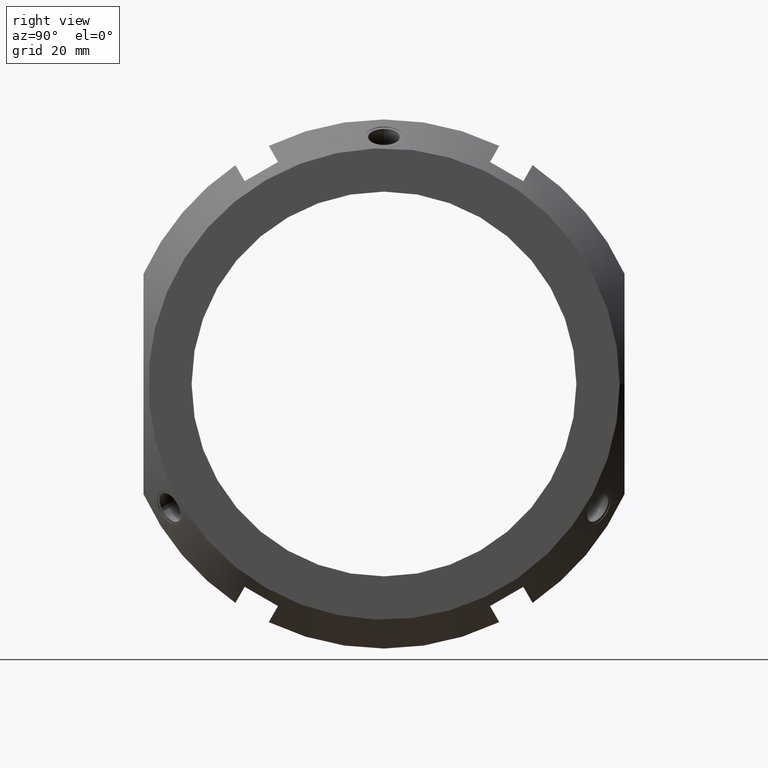
[diagram: clean part render]
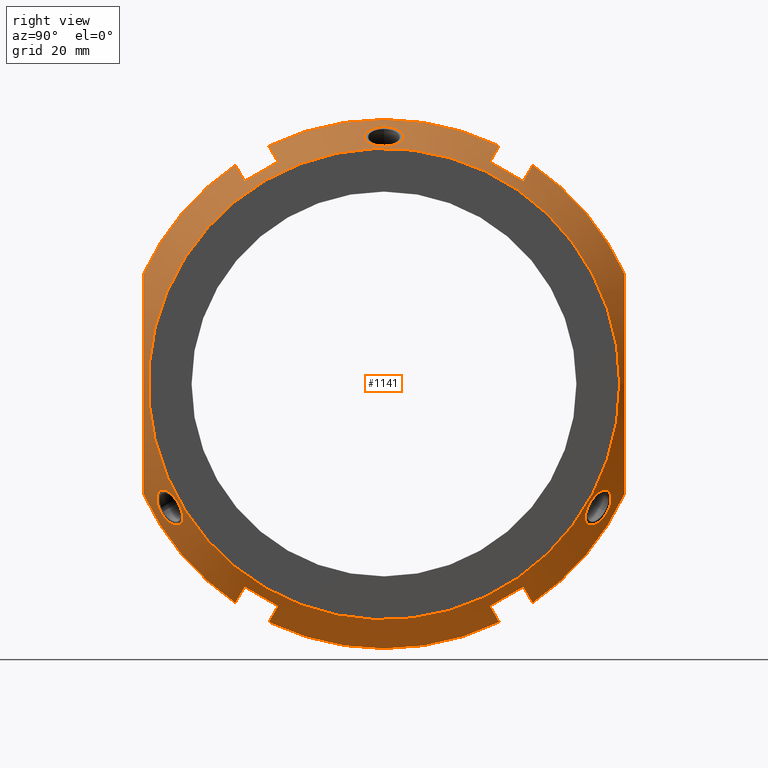
[diagram: same view with one face highlighted and labeled with its STEP entity id]
A machine part, right view. The second image highlights one B-rep face of the part: STEP entity #1141.
In plain terms, the highlighted conical surface has half-angle 30 deg.
Its self-contained STEP definition (entity closure, byte-faithful):
#90=CARTESIAN_POINT('',(28.264620690760729,28.964101615137743,-42.167295593006372));
#91=VERTEX_POINT('',#90);
#98=CARTESIAN_POINT('',(28.264620690760722,22.035898384862232,-46.167295593006372));
#99=VERTEX_POINT('',#98);
#100=CARTESIAN_POINT('',(28.264620690760722,22.035898384862232,-46.167295593006372));
#101=CARTESIAN_POINT('',(28.80634552915641,25.500000000000341,-44.167295593006166));
#102=CARTESIAN_POINT('',(28.264620690760729,28.964101615137743,-42.167295593006372));
#110=(BOUNDED_CURVE()B_SPLINE_CURVE(2,(#100,#101,#102),.UNSPECIFIED.,.F.,.U.)B_SPLINE_CURVE_WITH_KNOTS((3,3),(1.734643537009384,2.610468659470702),.UNSPECIFIED.)CURVE()GEOMETRIC_REPRESENTATION_ITEM()RATIONAL_B_SPLINE_CURVE((1.037622404359556,1.040808968189459,1.037622404359556))REPRESENTATION_ITEM(''));
#111=EDGE_CURVE('',#99,#91,#110,.T.);
#143=CARTESIAN_POINT('',(21.6076951545867,23.963074688667184,-49.505262866339351));
#144=VERTEX_POINT('',#143);
#145=CARTESIAN_POINT('',(21.6076951545867,23.963074688667191,-49.505262866339343));
#146=CARTESIAN_POINT('',(25.057353417111695,22.964600030328505,-47.775854028026771));
#147=CARTESIAN_POINT('',(28.264620690760722,22.035898384862236,-46.167295593006372));
#155=(BOUNDED_CURVE()B_SPLINE_CURVE(2,(#145,#146,#147),.UNSPECIFIED.,.F.,.U.)B_SPLINE_CURVE_WITH_KNOTS((3,3),(0.0,0.769224880885498),.UNSPECIFIED.)CURVE()GEOMETRIC_REPRESENTATION_ITEM()RATIONAL_B_SPLINE_CURVE((1.0,1.000659794382448,1.0))REPRESENTATION_ITEM(''));
#156=EDGE_CURVE('',#144,#99,#155,.T.);
#187=CARTESIAN_POINT('',(21.6076951545867,30.891277918942698,-45.505262866339358));
#188=VERTEX_POINT('',#187);
#195=CARTESIAN_POINT('',(28.264620690760729,28.964101615137743,-42.167295593006379));
#196=CARTESIAN_POINT('',(25.057353405152291,29.892803264066281,-43.77585403402361));
#197=CARTESIAN_POINT('',(21.6076951545867,30.891277918942691,-45.505262866339358));
#205=(BOUNDED_CURVE()B_SPLINE_CURVE(2,(#195,#196,#197),.UNSPECIFIED.,.F.,.U.)B_SPLINE_CURVE_WITH_KNOTS((3,3),(0.0,0.769224880885499),.UNSPECIFIED.)CURVE()GEOMETRIC_REPRESENTATION_ITEM()RATIONAL_B_SPLINE_CURVE((1.0,1.000659793944811,1.0))REPRESENTATION_ITEM(''));
#206=EDGE_CURVE('',#91,#188,#205,.T.);
#234=CARTESIAN_POINT('',(28.264620690760736,-28.964101615137817,-42.167295593006308));
#235=VERTEX_POINT('',#234);
#242=CARTESIAN_POINT('',(21.607695154586732,-30.89127791894277,-45.505262866339287));
#243=VERTEX_POINT('',#242);
#244=CARTESIAN_POINT('',(21.6076951545867,-30.891277918942777,-45.505262866339308));
#245=CARTESIAN_POINT('',(25.057353420734067,-29.892803259555407,-43.775854026210354));
#246=CARTESIAN_POINT('',(28.264620690760736,-28.964101615137817,-42.167295593006308));
#254=(BOUNDED_CURVE()B_SPLINE_CURVE(2,(#244,#245,#246),.UNSPECIFIED.,.F.,.U.)B_SPLINE_CURVE_WITH_KNOTS((3,3),(0.0,0.769224880885501),.UNSPECIFIED.)CURVE()GEOMETRIC_REPRESENTATION_ITEM()RATIONAL_B_SPLINE_CURVE((1.0,1.000659794403236,1.0))REPRESENTATION_ITEM(''));
#255=EDGE_CURVE('',#243,#235,#254,.T.);
#288=CARTESIAN_POINT('',(21.607695154586732,-23.963074688667263,-49.505262866339301));
#289=VERTEX_POINT('',#288);
#296=CARTESIAN_POINT('',(28.264620690760744,-22.03589838486231,-46.167295593006315));
#297=VERTEX_POINT('',#296);
#298=CARTESIAN_POINT('',(28.264620690760744,-22.03589838486231,-46.16729559300633));
#299=CARTESIAN_POINT('',(25.057353405166801,-22.964600033786652,-47.775854034016291));
#300=CARTESIAN_POINT('',(21.6076951545867,-23.96307468866727,-49.505262866339308));
#308=(BOUNDED_CURVE()B_SPLINE_CURVE(2,(#298,#299,#300),.UNSPECIFIED.,.F.,.U.)B_SPLINE_CURVE_WITH_KNOTS((3,3),(0.0,0.769224880885501),.UNSPECIFIED.)CURVE()GEOMETRIC_REPRESENTATION_ITEM()RATIONAL_B_SPLINE_CURVE((1.0,1.000659793995793,1.0))REPRESENTATION_ITEM(''));
#309=EDGE_CURVE('',#297,#289,#308,.T.);
#339=CARTESIAN_POINT('',(28.264620690760736,-28.964101615137817,-42.167295593006308));
#340=CARTESIAN_POINT('',(28.806345529156427,-25.499999999999719,-44.167295593006514));
#341=CARTESIAN_POINT('',(28.264620690760744,-22.03589838486231,-46.167295593006315));
#349=(BOUNDED_CURVE()B_SPLINE_CURVE(2,(#339,#340,#341),.UNSPECIFIED.,.F.,.U.)B_SPLINE_CURVE_WITH_KNOTS((3,3),(1.73464353700939,2.610468659470711),.UNSPECIFIED.)CURVE()GEOMETRIC_REPRESENTATION_ITEM()RATIONAL_B_SPLINE_CURVE((1.037622404359558,1.040808968189461,1.037622404359558))REPRESENTATION_ITEM(''));
#350=EDGE_CURVE('',#235,#297,#349,.T.);
#557=CARTESIAN_POINT('',(21.607695154586708,0.0,0.0));
#558=DIRECTION('',(1.0,0.0,0.0));
#559=DIRECTION('',(0.0,1.0,0.0));
#560=AXIS2_PLACEMENT_3D('',#557,#558,#559);
#561=CIRCLE('',#560,55.0);
#562=EDGE_CURVE('',#289,#144,#561,.T.);
#575=CARTESIAN_POINT('',(21.607695154586708,-50.000000000000028,-22.912878474779141));
#576=VERTEX_POINT('',#575);
#577=CARTESIAN_POINT('',(21.607695154586708,0.0,0.0));
#578=DIRECTION('',(1.0,0.0,0.0));
#579=DIRECTION('',(0.0,1.0,0.0));
#580=AXIS2_PLACEMENT_3D('',#577,#578,#579);
#581=CIRCLE('',#580,55.0);
#582=EDGE_CURVE('',#576,#243,#581,.T.);
#600=CARTESIAN_POINT('',(28.264620690760722,22.035898384862232,46.167295593006372));
#601=VERTEX_POINT('',#600);
#608=CARTESIAN_POINT('',(28.264620690760729,28.964101615137743,42.167295593006372));
#609=VERTEX_POINT('',#608);
#610=CARTESIAN_POINT('',(28.264620690760729,28.964101615137743,42.167295593006372));
#611=CARTESIAN_POINT('',(28.806345529156406,25.499999999999634,44.167295593006571));
#612=CARTESIAN_POINT('',(28.264620690760722,22.035898384862232,46.167295593006372));
#620=(BOUNDED_CURVE()B_SPLINE_CURVE(2,(#610,#611,#612),.UNSPECIFIED.,.F.,.U.)B_SPLINE_CURVE_WITH_KNOTS((3,3),(1.73464353700939,2.610468659470709),.UNSPECIFIED.)CURVE()GEOMETRIC_REPRESENTATION_ITEM()RATIONAL_B_SPLINE_CURVE((1.037622404359556,1.04080896818946,1.037622404359556))REPRESENTATION_ITEM(''));
#621=EDGE_CURVE('',#609,#601,#620,.T.);
#639=CARTESIAN_POINT('',(21.6076951545867,30.891277918942698,45.505262866339358));
#640=VERTEX_POINT('',#639);
#641=CARTESIAN_POINT('',(21.607695154586708,30.891277918942691,45.505262866339358));
#642=CARTESIAN_POINT('',(25.057353403914835,29.892803264424401,43.775854034643878));
#643=CARTESIAN_POINT('',(28.264620690760729,28.964101615137743,42.167295593006372));
#651=(BOUNDED_CURVE()B_SPLINE_CURVE(2,(#641,#642,#643),.UNSPECIFIED.,.F.,.U.)B_SPLINE_CURVE_WITH_KNOTS((3,3),(0.0,0.725655823753423),.UNSPECIFIED.)CURVE()GEOMETRIC_REPRESENTATION_ITEM()RATIONAL_B_SPLINE_CURVE((1.0,1.001737559443914,1.002155269651014))REPRESENTATION_ITEM(''));
#652=EDGE_CURVE('',#640,#609,#651,.T.);
#669=CARTESIAN_POINT('',(21.6076951545867,23.963074688667184,49.505262866339351));
#670=VERTEX_POINT('',#669);
#677=CARTESIAN_POINT('',(28.264620690760722,22.035898384862232,46.167295593006372));
#678=CARTESIAN_POINT('',(25.057353403793741,22.964600034183981,47.775854034704651));
#679=CARTESIAN_POINT('',(21.607695154586708,23.963074688667191,49.505262866339351));
#687=(BOUNDED_CURVE()B_SPLINE_CURVE(2,(#677,#678,#679),.UNSPECIFIED.,.F.,.U.)B_SPLINE_CURVE_WITH_KNOTS((3,3),(1.184971684905641,1.910627508695336),.UNSPECIFIED.)CURVE()GEOMETRIC_REPRESENTATION_ITEM()RATIONAL_B_SPLINE_CURVE((1.0021552696376,1.001737559433153,1.0))REPRESENTATION_ITEM(''));
#688=EDGE_CURVE('',#601,#670,#687,.T.);
#700=CARTESIAN_POINT('',(28.264620690760736,-28.964101615137817,42.167295593006308));
#701=VERTEX_POINT('',#700);
#708=CARTESIAN_POINT('',(28.264620690760744,-22.03589838486231,46.167295593006315));
#709=VERTEX_POINT('',#708);
#710=CARTESIAN_POINT('',(28.264620690760744,-22.03589838486231,46.167295593006315));
#711=CARTESIAN_POINT('',(28.806345529156413,-25.500000000000416,44.167295593006116));
#712=CARTESIAN_POINT('',(28.264620690760736,-28.964101615137817,42.167295593006308));
#720=(BOUNDED_CURVE()B_SPLINE_CURVE(2,(#710,#711,#712),.UNSPECIFIED.,.F.,.U.)B_SPLINE_CURVE_WITH_KNOTS((3,3),(1.734643537009391,2.610468659470709),.UNSPECIFIED.)CURVE()GEOMETRIC_REPRESENTATION_ITEM()RATIONAL_B_SPLINE_CURVE((1.037622404359557,1.04080896818946,1.037622404359557))REPRESENTATION_ITEM(''));
#721=EDGE_CURVE('',#709,#701,#720,.T.);
#739=CARTESIAN_POINT('',(21.607695154586732,-23.963074688667263,49.505262866339301));
#740=VERTEX_POINT('',#739);
#741=CARTESIAN_POINT('',(21.607695154586708,-23.963074688667266,49.505262866339308));
#742=CARTESIAN_POINT('',(25.057353403115261,-22.964600034380641,47.775854035045093));
#743=CARTESIAN_POINT('',(28.264620690760744,-22.03589838486231,46.167295593006315));
#751=(BOUNDED_CURVE()B_SPLINE_CURVE(2,(#741,#742,#743),.UNSPECIFIED.,.F.,.U.)B_SPLINE_CURVE_WITH_KNOTS((3,3),(0.0,0.725655824021857),.UNSPECIFIED.)CURVE()GEOMETRIC_REPRESENTATION_ITEM()RATIONAL_B_SPLINE_CURVE((1.0,1.001737559394436,1.002155269589153))REPRESENTATION_ITEM(''));
#752=EDGE_CURVE('',#740,#709,#751,.T.);
#769=CARTESIAN_POINT('',(21.607695154586732,-30.89127791894277,45.505262866339287));
#770=VERTEX_POINT('',#769);
#777=CARTESIAN_POINT('',(28.264620690760736,-28.964101615137817,42.167295593006308));
#778=CARTESIAN_POINT('',(25.05735340503454,-29.892803264100067,43.775854034081917));
#779=CARTESIAN_POINT('',(21.607695154586708,-30.891277918942777,45.505262866339294));
#787=(BOUNDED_CURVE()B_SPLINE_CURVE(2,(#777,#778,#779),.UNSPECIFIED.,.F.,.U.)B_SPLINE_CURVE_WITH_KNOTS((3,3),(1.184971685333193,1.910627508695336),.UNSPECIFIED.)CURVE()GEOMETRIC_REPRESENTATION_ITEM()RATIONAL_B_SPLINE_CURVE((1.002155269723438,1.001737559501728,1.0))REPRESENTATION_ITEM(''));
#788=EDGE_CURVE('',#701,#770,#787,.T.);
#800=CARTESIAN_POINT('',(21.607695154586708,50.000000000000043,22.912878474779106));
#801=VERTEX_POINT('',#800);
#802=CARTESIAN_POINT('',(21.607695154586708,0.0,0.0));
#803=DIRECTION('',(1.0,0.0,0.0));
#804=DIRECTION('',(0.0,1.0,0.0));
#805=AXIS2_PLACEMENT_3D('',#802,#803,#804);
#806=CIRCLE('',#805,55.0);
#807=EDGE_CURVE('',#801,#640,#806,.T.);
#826=CARTESIAN_POINT('',(21.607695154586708,-50.000000000000043,22.912878474779106));
#827=VERTEX_POINT('',#826);
#834=CARTESIAN_POINT('',(21.607695154586708,0.0,0.0));
#835=DIRECTION('',(1.0,0.0,0.0));
#836=DIRECTION('',(0.0,1.0,0.0));
#837=AXIS2_PLACEMENT_3D('',#834,#835,#836);
#838=CIRCLE('',#837,55.0);
#839=EDGE_CURVE('',#770,#827,#838,.T.);
#851=CARTESIAN_POINT('',(21.607695154586708,50.000000000000028,-22.912878474779141));
#852=VERTEX_POINT('',#851);
#853=CARTESIAN_POINT('',(21.607695154586708,50.000000000000028,-22.912878474779138));
#854=CARTESIAN_POINT('',(38.140907408653185,50.000000000000036,-9.779716E-015));
#855=CARTESIAN_POINT('',(21.607695154586711,50.000000000000043,22.912878474779102));
#863=(BOUNDED_CURVE()B_SPLINE_CURVE(2,(#853,#854,#855),.UNSPECIFIED.,.F.,.U.)B_SPLINE_CURVE_WITH_KNOTS((3,3),(0.0,4.898979485566338),.UNSPECIFIED.)CURVE()GEOMETRIC_REPRESENTATION_ITEM()RATIONAL_B_SPLINE_CURVE((1.0,1.099999999999999,1.0))REPRESENTATION_ITEM(''));
#864=EDGE_CURVE('',#852,#801,#863,.T.);
#882=CARTESIAN_POINT('',(21.607695154586708,-50.000000000000043,22.912878474779102));
#883=CARTESIAN_POINT('',(38.140907408653185,-50.000000000000036,-1.294303E-014));
#884=CARTESIAN_POINT('',(21.607695154586708,-50.000000000000028,-22.912878474779138));
#892=(BOUNDED_CURVE()B_SPLINE_CURVE(2,(#882,#883,#884),.UNSPECIFIED.,.F.,.U.)B_SPLINE_CURVE_WITH_KNOTS((3,3),(0.0,4.898979485566338),.UNSPECIFIED.)CURVE()GEOMETRIC_REPRESENTATION_ITEM()RATIONAL_B_SPLINE_CURVE((1.0,1.099999999999999,1.0))REPRESENTATION_ITEM(''));
#893=EDGE_CURVE('',#827,#576,#892,.T.);
#899=CARTESIAN_POINT('',(26.803847577293347,0.0,0.0));
#900=DIRECTION('',(-1.0,0.0,0.0));
#901=DIRECTION('',(0.0,1.0,0.0));
#902=AXIS2_PLACEMENT_3D('',#899,#900,#901);
#903=CONICAL_SURFACE('',#902,52.0,29.99999999999994);
#904=ORIENTED_EDGE('',*,*,#206,.T.);
#905=CARTESIAN_POINT('',(21.607695154586708,0.0,0.0));
#906=DIRECTION('',(1.0,0.0,0.0));
#907=DIRECTION('',(0.0,1.0,0.0));
#908=AXIS2_PLACEMENT_3D('',#905,#906,#907);
#909=CIRCLE('',#908,55.0);
#910=EDGE_CURVE('',#188,#852,#909,.T.);
#911=ORIENTED_EDGE('',*,*,#910,.T.);
#912=ORIENTED_EDGE('',*,*,#864,.T.);
#913=ORIENTED_EDGE('',*,*,#807,.T.);
#914=ORIENTED_EDGE('',*,*,#652,.T.);
#915=ORIENTED_EDGE('',*,*,#621,.T.);
#916=ORIENTED_EDGE('',*,*,#688,.T.);
#917=CARTESIAN_POINT('',(21.607695154586708,0.0,0.0));
#918=DIRECTION('',(1.0,0.0,0.0));
#919=DIRECTION('',(0.0,1.0,0.0));
#920=AXIS2_PLACEMENT_3D('',#917,#918,#919);
#921=CIRCLE('',#920,55.0);
#922=EDGE_CURVE('',#670,#740,#921,.T.);
#923=ORIENTED_EDGE('',*,*,#922,.T.);
#924=ORIENTED_EDGE('',*,*,#752,.T.);
#925=ORIENTED_EDGE('',*,*,#721,.T.);
#926=ORIENTED_EDGE('',*,*,#788,.T.);
#927=ORIENTED_EDGE('',*,*,#839,.T.);
#928=ORIENTED_EDGE('',*,*,#893,.T.);
#929=ORIENTED_EDGE('',*,*,#582,.T.);
#930=ORIENTED_EDGE('',*,*,#255,.T.);
#931=ORIENTED_EDGE('',*,*,#350,.T.);
#932=ORIENTED_EDGE('',*,*,#309,.T.);
#933=ORIENTED_EDGE('',*,*,#562,.T.);
#934=ORIENTED_EDGE('',*,*,#156,.T.);
#935=ORIENTED_EDGE('',*,*,#111,.T.);
#936=EDGE_LOOP('',(#904,#911,#912,#913,#914,#915,#916,#923,#924,#925,#926,#927,#928,#929,#930,#931,#932,#933,#934,#935));
#937=FACE_OUTER_BOUND('',#936,.T.);
#938=CARTESIAN_POINT('',(31.999999999999989,49.0,0.0));
#939=VERTEX_POINT('',#938);
#940=CARTESIAN_POINT('',(31.999999999999989,0.0,0.0));
#941=DIRECTION('',(1.0,0.0,0.0));
#942=DIRECTION('',(0.0,1.0,0.0));
#943=AXIS2_PLACEMENT_3D('',#940,#941,#942);
#944=CIRCLE('',#943,49.0);
#945=EDGE_CURVE('',#939,#939,#944,.T.);
#946=ORIENTED_EDGE('',*,*,#945,.F.);
#947=EDGE_LOOP('',(#946));
#948=FACE_BOUND('',#947,.T.);
#949=CARTESIAN_POINT('',(27.209554512072263,-4.017940230543362,51.609597765435645));
#950=VERTEX_POINT('',#949);
#951=CARTESIAN_POINT('',(27.209554512072263,4.017940230543362,51.609597765435645));
#952=VERTEX_POINT('',#951);
#953=CARTESIAN_POINT('',(27.209554512072263,-4.017940230543361,51.609597765435645));
#954=CARTESIAN_POINT('',(26.939134839373047,-3.978190034557428,51.769291721068697));
#955=CARTESIAN_POINT('',(26.66889265170866,-3.900177343793141,51.931818146804922));
#956=CARTESIAN_POINT('',(25.97057156994239,-3.589176763848575,52.358660435100944));
#957=CARTESIAN_POINT('',(25.568831340829469,-3.281179876666886,52.612134657530561));
#958=CARTESIAN_POINT('',(24.934915604030902,-2.557963145000911,53.018663391609053));
#959=CARTESIAN_POINT('',(24.661554663796359,-2.095793799865206,53.198051381512542));
#960=CARTESIAN_POINT('',(24.299291979020985,-1.077845305130758,53.437592144806878));
#961=CARTESIAN_POINT('',(24.210219507391781,-0.522053277396509,53.497431864335432));
#962=CARTESIAN_POINT('',(24.210219507391781,0.522053277396509,53.497431864335432));
#963=CARTESIAN_POINT('',(24.299291979020985,1.077845305130755,53.437592144806878));
#964=CARTESIAN_POINT('',(24.661554663796359,2.095793799865203,53.198051381512542));
#965=CARTESIAN_POINT('',(24.934915604030902,2.55796314500091,53.018663391609053));
#966=CARTESIAN_POINT('',(25.568831340829469,3.281179876666886,52.612134657530561));
#967=CARTESIAN_POINT('',(25.97057156994239,3.589176763848574,52.358660435100944));
#968=CARTESIAN_POINT('',(26.66889265170866,3.90017734379314,51.931818146804922));
#969=CARTESIAN_POINT('',(26.939134839373047,3.978190034557429,51.769291721068683));
#970=CARTESIAN_POINT('',(27.209554512072259,4.01794023054336,51.609597765435645));
#971=B_SPLINE_CURVE_WITH_KNOTS('',3,(#953,#954,#955,#956,#957,#958,#959,#960,#961,#962,#963,#964,#965,#966,#967,#968,#969,#970),.UNSPECIFIED.,.F.,.U.,(4,2,2,2,2,2,2,2,4),(1.254355175699413,1.345542130371437,1.502157929154016,1.658773912372968,1.815389895591921,1.972005878810873,2.128621862029826,2.285237660812404,2.376424615484428),.UNSPECIFIED.);
#972=EDGE_CURVE('',#950,#952,#971,.T.);
#973=ORIENTED_EDGE('',*,*,#972,.T.);
#974=CARTESIAN_POINT('',(28.225690273365089,3.995072917007132,51.022931510120017));
#975=VERTEX_POINT('',#974);
#976=CARTESIAN_POINT('',(27.209554512072263,4.017940230543362,51.609597765435645));
#977=CARTESIAN_POINT('',(27.719072302635546,4.006506573776131,51.315427531897022));
#978=CARTESIAN_POINT('',(28.225690273365089,3.995072917007132,51.022931510120017));
#979=B_SPLINE_CURVE_WITH_KNOTS('',2,(#976,#977,#978),.UNSPECIFIED.,.F.,.U.,(3,3),(0.350293273329336,0.467671084658452),.UNSPECIFIED.);
#980=EDGE_CURVE('',#952,#975,#979,.T.);
#981=ORIENTED_EDGE('',*,*,#980,.T.);
#982=CARTESIAN_POINT('',(28.225690273365089,-3.995072917007132,51.022931510120017));
#983=VERTEX_POINT('',#982);
#984=CARTESIAN_POINT('',(28.225690273365093,3.995072917007132,51.022931510120024));
#985=CARTESIAN_POINT('',(28.519132545825801,3.939014882750807,50.857383309246565));
#986=CARTESIAN_POINT('',(28.815747476672435,3.837746551656279,50.693540042722688));
#987=CARTESIAN_POINT('',(29.51940575629181,3.478337646094885,50.312469365478272));
#988=CARTESIAN_POINT('',(29.906228359597108,3.163766968435458,50.110267898197108));
#989=CARTESIAN_POINT('',(30.517660523239517,2.449957973334114,49.796809016055334));
#990=CARTESIAN_POINT('',(30.784128251821787,2.001827530269708,49.66402966929563));
#991=CARTESIAN_POINT('',(31.137911203943681,1.024544860498779,49.489506568321161));
#992=CARTESIAN_POINT('',(31.225025278045756,0.495378955746008,49.447431864335428));
#993=CARTESIAN_POINT('',(31.225025278045756,-0.495378955746008,49.447431864335428));
#994=CARTESIAN_POINT('',(31.137911203943677,-1.024544860498777,49.489506568321161));
#995=CARTESIAN_POINT('',(30.784128251821784,-2.001827530269706,49.66402966929563));
#996=CARTESIAN_POINT('',(30.517660523239517,-2.449957973334114,49.796809016055334));
#997=CARTESIAN_POINT('',(29.906228359597108,-3.163766968435458,50.110267898197108));
#998=CARTESIAN_POINT('',(29.519405756291818,-3.478337646094884,50.312469365478272));
#999=CARTESIAN_POINT('',(28.815747476672438,-3.837746551656278,50.693540042722688));
#1000=CARTESIAN_POINT('',(28.519132545825805,-3.939014882750805,50.857383309246558));
#1001=CARTESIAN_POINT('',(28.225690273365093,-3.995072917007132,51.022931510120024));
#1002=B_SPLINE_CURVE_WITH_KNOTS('',3,(#984,#985,#986,#987,#988,#989,#990,#991,#992,#993,#994,#995,#996,#997,#998,#999,#1000,#1001),.UNSPECIFIED.,.F.,.U.,(4,2,2,2,2,2,2,2,4),(0.049836218865129,0.148617896173412,0.297235792346824,0.445849479070627,0.594463165794429,0.743076852518232,0.891690539242034,1.040308435415446,1.13909011272373),.UNSPECIFIED.);
#1003=EDGE_CURVE('',#975,#983,#1002,.T.);
#1004=ORIENTED_EDGE('',*,*,#1003,.T.);
#1005=CARTESIAN_POINT('',(28.225690273365089,-3.995072917007132,51.022931510120017));
#1006=CARTESIAN_POINT('',(27.719072302633776,-4.006506573776089,51.315427531898052));
#1007=CARTESIAN_POINT('',(27.209554512072263,-4.017940230543362,51.609597765435645));
#1008=B_SPLINE_CURVE_WITH_KNOTS('',2,(#1005,#1006,#1007),.UNSPECIFIED.,.F.,.U.,(3,3),(0.342482687975418,0.459860499304534),.UNSPECIFIED.);
#1009=EDGE_CURVE('',#983,#950,#1008,.T.);
#1010=ORIENTED_EDGE('',*,*,#1009,.T.);
#1011=EDGE_LOOP('',(#973,#981,#1004,#1010));
#1012=FACE_BOUND('',#1011,.T.);
#1013=CARTESIAN_POINT('',(27.209554512071911,-42.686252628692394,-29.284437193255926));
#1014=VERTEX_POINT('',#1013);
#1015=CARTESIAN_POINT('',(27.209554512071911,-46.704192859235711,-22.325160572179904));
#1016=VERTEX_POINT('',#1015);
#1017=CARTESIAN_POINT('',(27.209554512071911,-42.686252628692401,-29.284437193255926));
#1018=CARTESIAN_POINT('',(26.939134839372816,-42.84442674909436,-29.329859491543175));
#1019=CARTESIAN_POINT('',(26.668892651708539,-43.024185107950288,-29.343561732391812));
#1020=CARTESIAN_POINT('',(25.970571569942379,-43.549341662996326,-29.287648473716146));
#1021=CARTESIAN_POINT('',(25.568831340829462,-43.92285522241572,-29.147652456345085));
#1022=CARTESIAN_POINT('',(24.934915604030895,-44.636527799329009,-28.724592761319641));
#1023=CARTESIAN_POINT('',(24.661554663796359,-45.02296702828712,-28.414036362533452));
#1024=CARTESIAN_POINT('',(24.299291979020978,-45.739389661909158,-27.652237487996455));
#1025=CARTESIAN_POINT('',(24.210219507391777,-46.069108393043336,-27.200827332522003));
#1026=CARTESIAN_POINT('',(24.210219507391777,-46.591161670439845,-26.296604531813404));
#1027=CARTESIAN_POINT('',(24.299291979020982,-46.817234967039916,-25.785354656810391));
#1028=CARTESIAN_POINT('',(24.661554663796359,-47.118760828152318,-24.784015018979066));
#1029=CARTESIAN_POINT('',(24.934915604030898,-47.194490944329921,-24.29407063028939));
#1030=CARTESIAN_POINT('',(25.568831340829465,-47.204035099082603,-23.464482201185454));
#1031=CARTESIAN_POINT('',(25.970571569942386,-47.138518426844897,-23.07101196138477));
#1032=CARTESIAN_POINT('',(26.66889265170855,-46.924362451743377,-22.588256414413156));
#1033=CARTESIAN_POINT('',(26.939134839372819,-46.822616783651711,-22.439432229525629));
#1034=CARTESIAN_POINT('',(27.209554512071911,-46.704192859235704,-22.325160572179904));
#1035=B_SPLINE_CURVE_WITH_KNOTS('',3,(#1017,#1018,#1019,#1020,#1021,#1022,#1023,#1024,#1025,#1026,#1027,#1028,#1029,#1030,#1031,#1032,#1033,#1034),.UNSPECIFIED.,.F.,.U.,(4,2,2,2,2,2,2,2,4),(1.254355175699451,1.345542130371437,1.502157929154015,1.658773912372968,1.81538989559192,1.972005878810873,2.128621862029826,2.285237660812404,2.376424615484389),.UNSPECIFIED.);
#1036=EDGE_CURVE('',#1014,#1016,#1035,.T.);
#1037=ORIENTED_EDGE('',*,*,#1036,.T.);
#1038=CARTESIAN_POINT('',(28.225690273365437,-46.184691321820821,-22.051631118960586));
#1039=VERTEX_POINT('',#1038);
#1040=CARTESIAN_POINT('',(27.209554512071911,-46.704192859235711,-22.325160572179904));
#1041=CARTESIAN_POINT('',(27.719072302682338,-46.443717135546322,-22.18797729261653));
#1042=CARTESIAN_POINT('',(28.225690273365437,-46.184691321820821,-22.051631118960586));
#1043=B_SPLINE_CURVE_WITH_KNOTS('',2,(#1040,#1041,#1042),.UNSPECIFIED.,.F.,.U.,(3,3),(0.350293273203268,0.467671084532465),.UNSPECIFIED.);
#1044=EDGE_CURVE('',#1016,#1039,#1043,.T.);
#1045=ORIENTED_EDGE('',*,*,#1044,.T.);
#1046=CARTESIAN_POINT('',(28.225690273365444,-42.189618404813757,-28.971300391159225));
#1047=VERTEX_POINT('',#1046);
#1048=CARTESIAN_POINT('',(28.225690273365434,-46.184691321820821,-22.051631118960586));
#1049=CARTESIAN_POINT('',(28.519132545826025,-46.013293357185489,-22.017404700276092));
#1050=CARTESIAN_POINT('',(28.815747476672541,-45.820766760589592,-22.023184014340885));
#1051=CARTESIAN_POINT('',(29.519405756291807,-45.311045420677971,-22.143905918281188));
#1052=CARTESIAN_POINT('',(29.906228359597108,-44.978648474500304,-22.315231382779363));
#1053=CARTESIAN_POINT('',(30.517660523239517,-44.350280621972971,-22.776678664916076));
#1054=CARTESIAN_POINT('',(30.78412825182177,-44.011225113048944,-23.098381339439165));
#1055=CARTESIAN_POINT('',(31.13791120394367,-43.371442339172361,-23.857471407651833));
#1056=CARTESIAN_POINT('',(31.225025278045745,-43.070421624287633,-24.294705171991456));
#1057=CARTESIAN_POINT('',(31.225025278045745,-42.575042668541613,-25.152726692343958));
#1058=CARTESIAN_POINT('',(31.137911203943681,-42.346897478673583,-25.632035160669304));
#1059=CARTESIAN_POINT('',(30.784128251821784,-42.009397582779243,-26.565648329856437));
#1060=CARTESIAN_POINT('',(30.517660523239513,-41.900322648638841,-27.020130351139244));
#1061=CARTESIAN_POINT('',(29.906228359597105,-41.814881506064829,-27.795036515417735));
#1062=CARTESIAN_POINT('',(29.519405756291807,-41.832707774583099,-28.168563447197066));
#1063=CARTESIAN_POINT('',(28.815747476672545,-41.983020208933375,-28.670356028381718));
#1064=CARTESIAN_POINT('',(28.519132545826036,-42.074278474434756,-28.83997860897032));
#1065=CARTESIAN_POINT('',(28.225690273365437,-42.189618404813757,-28.971300391159222));
#1066=B_SPLINE_CURVE_WITH_KNOTS('',3,(#1048,#1049,#1050,#1051,#1052,#1053,#1054,#1055,#1056,#1057,#1058,#1059,#1060,#1061,#1062,#1063,#1064,#1065),.UNSPECIFIED.,.F.,.U.,(4,2,2,2,2,2,2,2,4),(0.049836218865168,0.148617896173412,0.297235792346824,0.445849479070627,0.594463165794429,0.743076852518232,0.891690539242034,1.040308435415446,1.13909011272369),.UNSPECIFIED.);
#1067=EDGE_CURVE('',#1039,#1047,#1066,.T.);
#1068=ORIENTED_EDGE('',*,*,#1067,.T.);
#1069=CARTESIAN_POINT('',(28.225690273365444,-42.189618404813757,-28.971300391159225));
#1070=CARTESIAN_POINT('',(27.719072302669787,-42.437210561777476,-29.127450239257353));
#1071=CARTESIAN_POINT('',(27.209554512071911,-42.686252628692394,-29.284437193255926));
#1072=B_SPLINE_CURVE_WITH_KNOTS('',2,(#1069,#1070,#1071),.UNSPECIFIED.,.F.,.U.,(3,3),(0.34248268807235,0.459860499401547),.UNSPECIFIED.);
#1073=EDGE_CURVE('',#1047,#1014,#1072,.T.);
#1074=ORIENTED_EDGE('',*,*,#1073,.T.);
#1075=EDGE_LOOP('',(#1037,#1045,#1068,#1074));
#1076=FACE_BOUND('',#1075,.T.);
#1077=CARTESIAN_POINT('',(27.209554512071911,46.70419285923569,-22.325160572179943));
#1078=VERTEX_POINT('',#1077);
#1079=CARTESIAN_POINT('',(27.209554512071911,42.686252628692372,-29.284437193255961));
#1080=VERTEX_POINT('',#1079);
#1081=CARTESIAN_POINT('',(27.209554512071911,46.704192859235683,-22.325160572179943));
#1082=CARTESIAN_POINT('',(26.939134839372816,46.822616783651689,-22.439432229525671));
#1083=CARTESIAN_POINT('',(26.66889265170855,46.924362451743356,-22.588256414413195));
#1084=CARTESIAN_POINT('',(25.97057156994239,47.138518426844875,-23.071011961384809));
#1085=CARTESIAN_POINT('',(25.568831340829465,47.204035099082589,-23.46448220118549));
#1086=CARTESIAN_POINT('',(24.934915604030898,47.1944909443299,-24.294070630289426));
#1087=CARTESIAN_POINT('',(24.661554663796352,47.118760828152311,-24.784015018979112));
#1088=CARTESIAN_POINT('',(24.299291979020971,46.817234967039887,-25.785354656810441));
#1089=CARTESIAN_POINT('',(24.210219507391777,46.591161670439831,-26.296604531813443));
#1090=CARTESIAN_POINT('',(24.210219507391777,46.069108393043322,-27.200827332522049));
#1091=CARTESIAN_POINT('',(24.299291979020975,45.739389661909122,-27.652237487996491));
#1092=CARTESIAN_POINT('',(24.661554663796345,45.022967028287084,-28.414036362533487));
#1093=CARTESIAN_POINT('',(24.934915604030898,44.636527799328995,-28.724592761319677));
#1094=CARTESIAN_POINT('',(25.568831340829465,43.922855222415706,-29.147652456345121));
#1095=CARTESIAN_POINT('',(25.970571569942386,43.549341662996312,-29.287648473716189));
#1096=CARTESIAN_POINT('',(26.668892651708546,43.024185107950288,-29.343561732391855));
#1097=CARTESIAN_POINT('',(26.939134839372812,42.844426749094325,-29.329859491543214));
#1098=CARTESIAN_POINT('',(27.209554512071907,42.686252628692365,-29.284437193255965));
#1099=B_SPLINE_CURVE_WITH_KNOTS('',3,(#1081,#1082,#1083,#1084,#1085,#1086,#1087,#1088,#1089,#1090,#1091,#1092,#1093,#1094,#1095,#1096,#1097,#1098),.UNSPECIFIED.,.F.,.U.,(4,2,2,2,2,2,2,2,4),(1.254355175699452,1.345542130371436,1.502157929154015,1.658773912372968,1.815389895591921,1.972005878810873,2.128621862029826,2.285237660812404,2.37642461548439),.UNSPECIFIED.);
#1100=EDGE_CURVE('',#1078,#1080,#1099,.T.);
#1101=ORIENTED_EDGE('',*,*,#1100,.T.);
#1102=CARTESIAN_POINT('',(28.225690273365437,42.189618404813736,-28.971300391159257));
#1103=VERTEX_POINT('',#1102);
#1104=CARTESIAN_POINT('',(27.209554512071911,42.686252628692372,-29.284437193255961));
#1105=CARTESIAN_POINT('',(27.719072302629137,42.437210561797301,-29.127450239269969));
#1106=CARTESIAN_POINT('',(28.225690273365437,42.189618404813736,-28.971300391159257));
#1107=B_SPLINE_CURVE_WITH_KNOTS('',2,(#1104,#1105,#1106),.UNSPECIFIED.,.F.,.U.,(3,3),(0.350293273346562,0.467671084675758),.UNSPECIFIED.);
#1108=EDGE_CURVE('',#1080,#1103,#1107,.T.);
#1109=ORIENTED_EDGE('',*,*,#1108,.T.);
#1110=CARTESIAN_POINT('',(28.225690273365437,46.184691321820807,-22.051631118960621));
#1111=VERTEX_POINT('',#1110);
#1112=CARTESIAN_POINT('',(28.225690273365434,42.189618404813729,-28.971300391159257));
#1113=CARTESIAN_POINT('',(28.519132545826025,42.074278474434728,-28.839978608970355));
#1114=CARTESIAN_POINT('',(28.815747476672541,41.98302020893334,-28.670356028381754));
#1115=CARTESIAN_POINT('',(29.519405756291807,41.832707774583056,-28.168563447197101));
#1116=CARTESIAN_POINT('',(29.906228359597105,41.814881506064808,-27.795036515417774));
#1117=CARTESIAN_POINT('',(30.517660523239513,41.90032264863882,-27.020130351139283));
#1118=CARTESIAN_POINT('',(30.78412825182177,42.009397582779215,-26.565648329856472));
#1119=CARTESIAN_POINT('',(31.137911203943673,42.346897478673561,-25.632035160669332));
#1120=CARTESIAN_POINT('',(31.225025278045745,42.575042668541592,-25.152726692343993));
#1121=CARTESIAN_POINT('',(31.225025278045745,43.070421624287611,-24.294705171991495));
#1122=CARTESIAN_POINT('',(31.137911203943673,43.371442339172347,-23.857471407651872));
#1123=CARTESIAN_POINT('',(30.784128251821773,44.011225113048923,-23.098381339439204));
#1124=CARTESIAN_POINT('',(30.517660523239506,44.350280621972942,-22.776678664916112));
#1125=CARTESIAN_POINT('',(29.906228359597105,44.978648474500261,-22.315231382779398));
#1126=CARTESIAN_POINT('',(29.519405756291807,45.311045420677949,-22.143905918281227));
#1127=CARTESIAN_POINT('',(28.815747476672545,45.820766760589571,-22.023184014340927));
#1128=CARTESIAN_POINT('',(28.519132545826025,46.013293357185461,-22.017404700276131));
#1129=CARTESIAN_POINT('',(28.225690273365434,46.184691321820793,-22.051631118960625));
#1130=B_SPLINE_CURVE_WITH_KNOTS('',3,(#1112,#1113,#1114,#1115,#1116,#1117,#1118,#1119,#1120,#1121,#1122,#1123,#1124,#1125,#1126,#1127,#1128,#1129),.UNSPECIFIED.,.F.,.U.,(4,2,2,2,2,2,2,2,4),(0.049836218865168,0.148617896173412,0.297235792346824,0.445849479070627,0.594463165794429,0.743076852518232,0.891690539242034,1.040308435415446,1.13909011272369),.UNSPECIFIED.);
#1131=EDGE_CURVE('',#1103,#1111,#1130,.T.);
#1132=ORIENTED_EDGE('',*,*,#1131,.T.);
#1133=CARTESIAN_POINT('',(28.225690273365437,46.184691321820807,-22.051631118960621));
#1134=CARTESIAN_POINT('',(27.719072302675887,46.443717135549612,-22.187977292618285));
#1135=CARTESIAN_POINT('',(27.209554512071911,46.70419285923569,-22.325160572179943));
#1136=B_SPLINE_CURVE_WITH_KNOTS('',2,(#1133,#1134,#1135),.UNSPECIFIED.,.F.,.U.,(3,3),(0.342482688088789,0.459860499417985),.UNSPECIFIED.);
#1137=EDGE_CURVE('',#1111,#1078,#1136,.T.);
#1138=ORIENTED_EDGE('',*,*,#1137,.T.);
#1139=EDGE_LOOP('',(#1101,#1109,#1132,#1138));
#1140=FACE_BOUND('',#1139,.T.);
#1141=ADVANCED_FACE('',(#937,#948,#1012,#1076,#1140),#903,.T.);